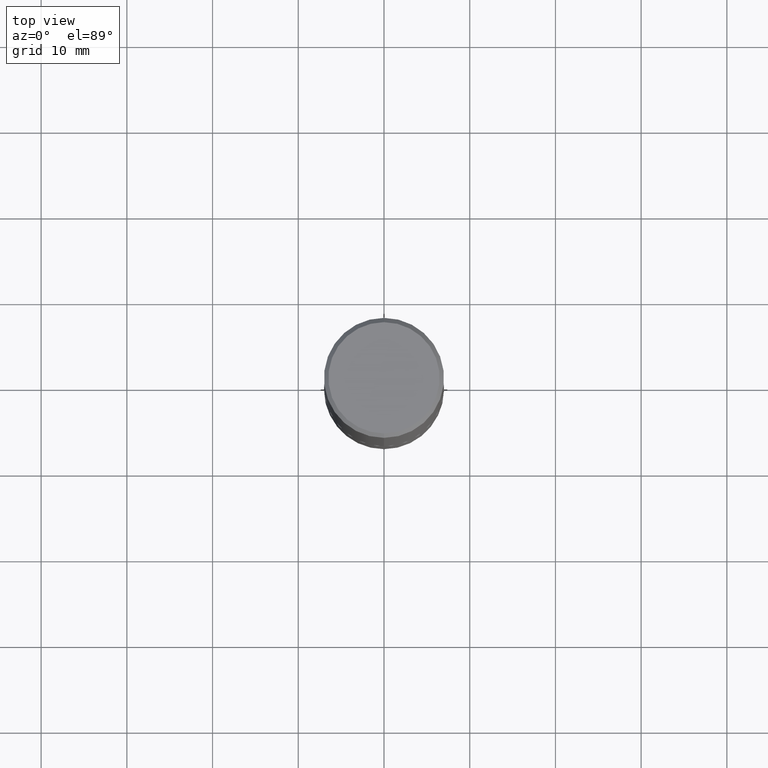
[diagram: clean part render]
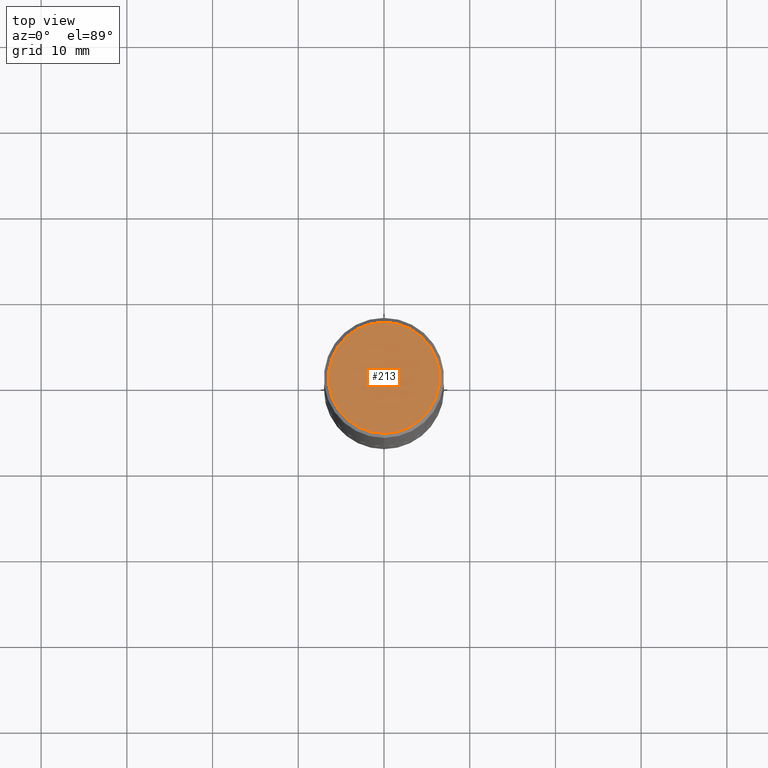
[diagram: same view with one face highlighted and labeled with its STEP entity id]
A machine part, top view. The second image highlights one B-rep face of the part: STEP entity #213.
In plain terms, the highlighted planar face has unit normal (0, -0, -1).
Its self-contained STEP definition (entity closure, byte-faithful):
#8 = EDGE_CURVE ( 'NONE', #49, #314, #342, .T. ) ;
#9 = DIRECTION ( 'NONE',  ( 6.982962677686265922E-15, 1.000000000000000000, -3.493123410481168498E-15 ) ) ;
#28 = ORIENTED_EDGE ( 'NONE', *, *, #8, .T. ) ;
#33 = CARTESIAN_POINT ( 'NONE',  ( -1.822148268208117593E-15, -0.2555999999999998273, 1.093882144264383997E-15 ) ) ;
#49 = VERTEX_POINT ( 'NONE', #33 ) ;
#75 = DIRECTION ( 'NONE',  ( 2.444322153688896085E-29, -3.493123410481168498E-15, -1.000000000000000000 ) ) ;
#97 = EDGE_CURVE ( 'NONE', #314, #49, #330, .T. ) ;
#99 = CARTESIAN_POINT ( 'NONE',  ( -4.914060382463135055E-45, 7.022568337235947334E-31, 2.010398005453980136E-16 ) ) ;
#116 = ORIENTED_EDGE ( 'NONE', *, *, #97, .T. ) ;
#128 = DIRECTION ( 'NONE',  ( -6.982962677686265922E-15, -1.000000000000000000, 3.493123410481168498E-15 ) ) ;
#158 = DIRECTION ( 'NONE',  ( -6.982962677686265922E-15, -1.000000000000000000, 3.493123410481168498E-15 ) ) ;
#165 = CARTESIAN_POINT ( 'NONE',  ( 1.784845260416608358E-15, 0.2555999999999998273, -7.923224434462870510E-16 ) ) ;
#166 = CARTESIAN_POINT ( 'NONE',  ( 1.854674887193472050E-15, 0.2555999999999998273, -6.918025431735880688E-16 ) ) ;
#189 = DIRECTION ( 'NONE',  ( -2.444322153688896365E-29, 3.493123410481168498E-15, 1.000000000000000000 ) ) ;
#204 = AXIS2_PLACEMENT_3D ( 'NONE', #99, #324, #158 ) ;
#213 = ADVANCED_FACE ( 'NONE', ( #332 ), #301, .F. ) ;
#240 = AXIS2_PLACEMENT_3D ( 'NONE', #165, #75, #9 ) ;
#247 = EDGE_LOOP ( 'NONE', ( #116, #28 ) ) ;
#301 = PLANE ( 'NONE',  #240 ) ;
#314 = VERTEX_POINT ( 'NONE', #166 ) ;
#322 = CARTESIAN_POINT ( 'NONE',  ( -4.914060382463135055E-45, 7.022568337235947334E-31, 2.010398005453980136E-16 ) ) ;
#324 = DIRECTION ( 'NONE',  ( -2.444322153688896365E-29, 3.493123410481168498E-15, 1.000000000000000000 ) ) ;
#330 = CIRCLE ( 'NONE', #405, 0.2555999999999998273 ) ;
#332 = FACE_OUTER_BOUND ( 'NONE', #247, .T. ) ;
#342 = CIRCLE ( 'NONE', #204, 0.2555999999999998273 ) ;
#405 = AXIS2_PLACEMENT_3D ( 'NONE', #322, #189, #128 ) ;